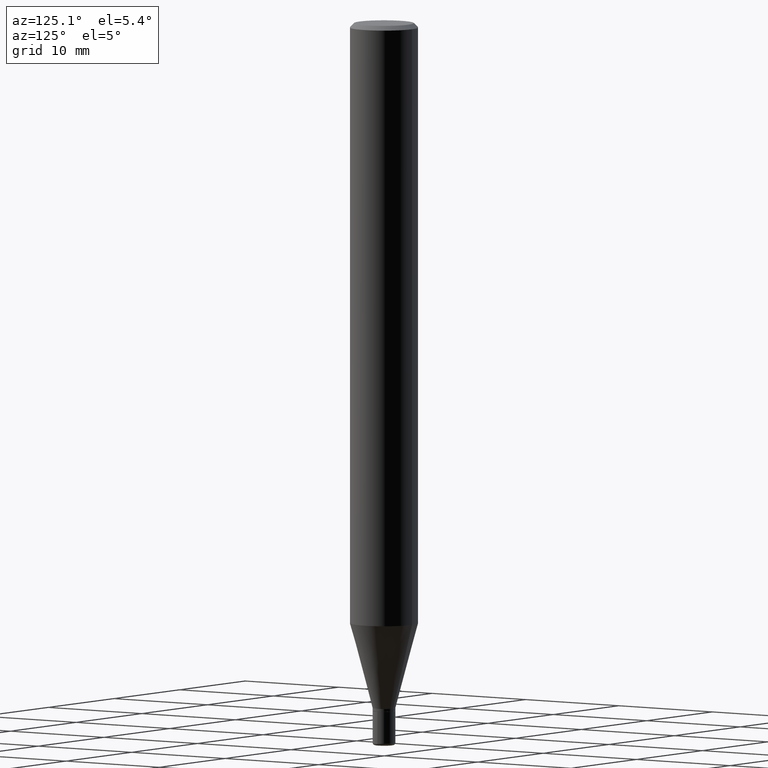
[diagram: clean part render]
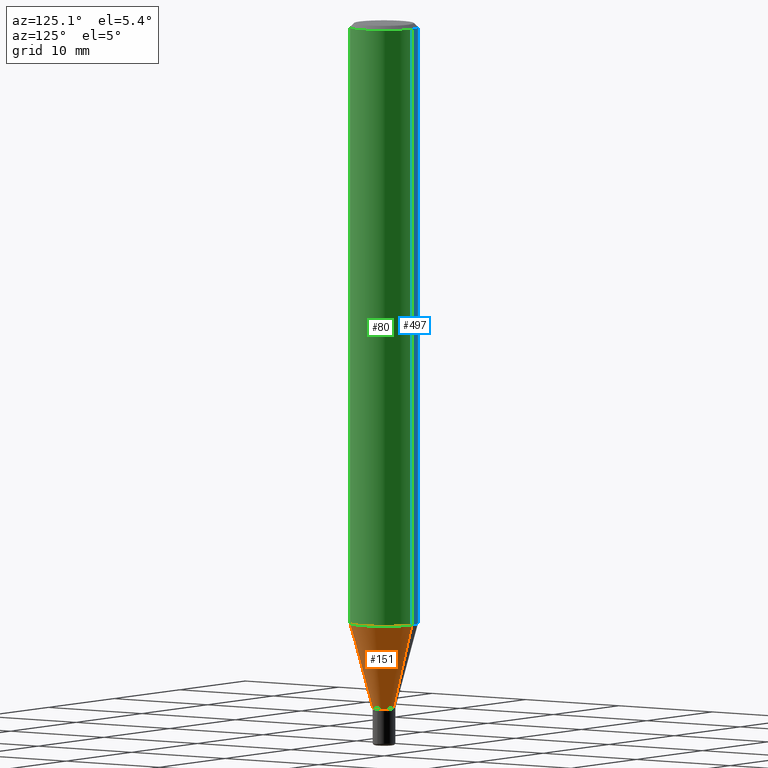
[diagram: same view with three faces highlighted in distinct colors, each labeled with its STEP entity id]
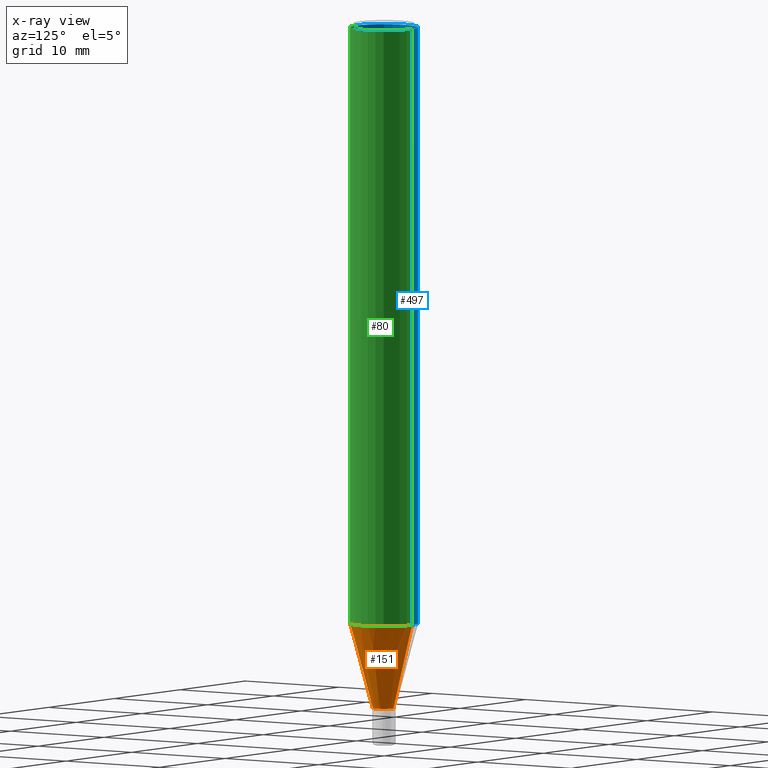
[diagram: x-ray of the same camera — body ghosted, the three highlighted faces saturated]
A machine part, auxiliary view with three faces highlighted in distinct colors.
The next image is the same camera in x-ray (body ghosted, the three faces saturated) — at least one of them is partly hidden behind the body in this view.
Their STEP definitions:

[orange] entity #151 — the highlighted conical surface has half-angle 15 deg.
#2 = LINE ( 'NONE', #292, #290 ) ;
#11 = DIRECTION ( 'NONE',  ( -2.445160199248264608E-29, 3.491923281541562351E-15, 1.000000000000000000 ) ) ;
#15 = VERTEX_POINT ( 'NONE', #66 ) ;
#21 = VECTOR ( 'NONE', #356, 39.37007874015748854 ) ;
#27 = ORIENTED_EDGE ( 'NONE', *, *, #166, .F. ) ;
#41 = CARTESIAN_POINT ( 'NONE',  ( 2.795985665216578697E-16, 0.03934999999999178738, -2.371900000000000563 ) ) ;
#48 = VERTEX_POINT ( 'NONE', #262 ) ;
#53 = ORIENTED_EDGE ( 'NONE', *, *, #252, .T. ) ;
#66 = CARTESIAN_POINT ( 'NONE',  ( 8.391509709327291772E-16, 0.1180999999999927802, -2.078000998903951846 ) ) ;
#83 = LINE ( 'NONE', #41, #21 ) ;
#90 = EDGE_CURVE ( 'NONE', #48, #15, #83, .T. ) ;
#103 = CIRCLE ( 'NONE', #504, 0.03935000000000007242 ) ;
#106 = CARTESIAN_POINT ( 'NONE',  ( 5.799675476596958470E-29, -8.282492831488431921E-15, -2.371900000000000119 ) ) ;
#141 = DIRECTION ( 'NONE',  ( -2.445160199248264608E-29, 3.491923281541562351E-15, 1.000000000000000000 ) ) ;
#151 = ADVANCED_FACE ( 'NONE', ( #386 ), #291, .T. ) ;
#166 = EDGE_CURVE ( 'NONE', #191, #15, #437, .T. ) ;
#178 = DIRECTION ( 'NONE',  ( -6.982962677686264344E-15, -1.000000000000000000, 6.942434545525433679E-15 ) ) ;
#191 = VERTEX_POINT ( 'NONE', #295 ) ;
#208 = VERTEX_POINT ( 'NONE', #218 ) ;
#218 = CARTESIAN_POINT ( 'NONE',  ( -2.747795813668970342E-16, -0.03935000000000835052, -2.371900000000000119 ) ) ;
#252 = EDGE_CURVE ( 'NONE', #208, #48, #103, .T. ) ;
#255 = DIRECTION ( 'NONE',  ( -1.807323732225324617E-15, -0.2588190451025174088, 0.9659258262890690894 ) ) ;
#262 = CARTESIAN_POINT ( 'NONE',  ( 5.593747687271934248E-16, 0.03934999999999178738, -2.371900000000000563 ) ) ;
#290 = VECTOR ( 'NONE', #255, 39.37007874015748854 ) ;
#291 = CONICAL_SURFACE ( 'NONE', #358, 0.03935000000000007242, 0.2617993877991495189 ) ;
#292 = CARTESIAN_POINT ( 'NONE',  ( -2.747795813668970342E-16, -0.03935000000000835052, -2.371900000000000119 ) ) ;
#295 = CARTESIAN_POINT ( 'NONE',  ( -8.246878922346967894E-16, -0.1181000000000071992, -2.078000998903951402 ) ) ;
#299 = DIRECTION ( 'NONE',  ( -2.445160199248264608E-29, 3.491923281541562351E-15, 1.000000000000000000 ) ) ;
#352 = ORIENTED_EDGE ( 'NONE', *, *, #90, .T. ) ;
#356 = DIRECTION ( 'NONE',  ( 1.839019923739594793E-15, 0.2588190451025241812, 0.9659258262890673130 ) ) ;
#357 = DIRECTION ( 'NONE',  ( -6.982962677686264344E-15, -1.000000000000000000, 6.942434545525433679E-15 ) ) ;
#358 = AXIS2_PLACEMENT_3D ( 'NONE', #106, #141, #357 ) ;
#383 = AXIS2_PLACEMENT_3D ( 'NONE', #468, #299, #439 ) ;
#386 = FACE_OUTER_BOUND ( 'NONE', #495, .T. ) ;
#414 = CARTESIAN_POINT ( 'NONE',  ( 5.799675476596958470E-29, -8.282492831488431921E-15, -2.371900000000000119 ) ) ;
#437 = CIRCLE ( 'NONE', #383, 0.1180999999999999966 ) ;
#439 = DIRECTION ( 'NONE',  ( -6.982962677686265922E-15, -1.000000000000000000, 4.626330217890369336E-15 ) ) ;
#468 = CARTESIAN_POINT ( 'NONE',  ( 5.081045336518078348E-29, -7.256220067139329431E-15, -2.078000998903951402 ) ) ;
#475 = ORIENTED_EDGE ( 'NONE', *, *, #517, .F. ) ;
#495 = EDGE_LOOP ( 'NONE', ( #53, #352, #27, #475 ) ) ;
#504 = AXIS2_PLACEMENT_3D ( 'NONE', #414, #11, #178 ) ;
#517 = EDGE_CURVE ( 'NONE', #208, #191, #2, .T. ) ;

[blue] entity #497 — the highlighted cylindrical surface (edge-blend (fillet) strip) has radius 2.9997 mm, axis along (-0, 0, 1).
#12 = EDGE_CURVE ( 'NONE', #239, #297, #373, .T. ) ;
#15 = VERTEX_POINT ( 'NONE', #66 ) ;
#31 = AXIS2_PLACEMENT_3D ( 'NONE', #350, #509, #157 ) ;
#46 = AXIS2_PLACEMENT_3D ( 'NONE', #502, #413, #58 ) ;
#58 = DIRECTION ( 'NONE',  ( -6.982962677686265922E-15, -1.000000000000000000, 3.487819265831411744E-15 ) ) ;
#66 = CARTESIAN_POINT ( 'NONE',  ( 8.391509709327291772E-16, 0.1180999999999927802, -2.078000998903951846 ) ) ;
#99 = EDGE_CURVE ( 'NONE', #191, #297, #278, .T. ) ;
#101 = DIRECTION ( 'NONE',  ( -2.445160199248264608E-29, 3.491923281541562351E-15, 1.000000000000000000 ) ) ;
#147 = LINE ( 'NONE', #254, #152 ) ;
#152 = VECTOR ( 'NONE', #422, 39.37007874015748143 ) ;
#157 = DIRECTION ( 'NONE',  ( -6.982962677686265922E-15, -1.000000000000000000, 3.491923281541562746E-15 ) ) ;
#187 = AXIS2_PLACEMENT_3D ( 'NONE', #345, #101, #335 ) ;
#191 = VERTEX_POINT ( 'NONE', #295 ) ;
#192 = EDGE_CURVE ( 'NONE', #15, #191, #308, .T. ) ;
#239 = VERTEX_POINT ( 'NONE', #459 ) ;
#254 = CARTESIAN_POINT ( 'NONE',  ( 8.391509709326781971E-16, 0.1180999999999999966, -4.123961395500585500E-16 ) ) ;
#263 = CARTESIAN_POINT ( 'NONE',  ( -8.246878922347475723E-16, -0.1181000000000000522, -0.01499999999999954495 ) ) ;
#267 = EDGE_CURVE ( 'NONE', #15, #239, #147, .T. ) ;
#274 = CYLINDRICAL_SURFACE ( 'NONE', #31, 0.1180999999999999966 ) ;
#278 = LINE ( 'NONE', #433, #398 ) ;
#295 = CARTESIAN_POINT ( 'NONE',  ( -8.246878922346967894E-16, -0.1181000000000071992, -2.078000998903951402 ) ) ;
#297 = VERTEX_POINT ( 'NONE', #263 ) ;
#308 = CIRCLE ( 'NONE', #187, 0.1180999999999999966 ) ;
#310 = ORIENTED_EDGE ( 'NONE', *, *, #267, .F. ) ;
#332 = ORIENTED_EDGE ( 'NONE', *, *, #192, .T. ) ;
#335 = DIRECTION ( 'NONE',  ( -6.982962677686265922E-15, -1.000000000000000000, 4.626330217890369336E-15 ) ) ;
#344 = ORIENTED_EDGE ( 'NONE', *, *, #99, .T. ) ;
#345 = CARTESIAN_POINT ( 'NONE',  ( 5.081045336518078348E-29, -7.256220067139329431E-15, -2.078000998903951402 ) ) ;
#350 = CARTESIAN_POINT ( 'NONE',  ( 0.000000000000000000, 0.000000000000000000, 0.000000000000000000 ) ) ;
#373 = CIRCLE ( 'NONE', #46, 0.1180999999999999966 ) ;
#388 = FACE_OUTER_BOUND ( 'NONE', #488, .T. ) ;
#392 = DIRECTION ( 'NONE',  ( -2.445160199248264608E-29, 3.491923281541562351E-15, 1.000000000000000000 ) ) ;
#396 = ORIENTED_EDGE ( 'NONE', *, *, #12, .F. ) ;
#398 = VECTOR ( 'NONE', #392, 39.37007874015748143 ) ;
#413 = DIRECTION ( 'NONE',  ( -2.445160199248264608E-29, 3.491923281541562351E-15, 1.000000000000000000 ) ) ;
#422 = DIRECTION ( 'NONE',  ( -2.445160199248264608E-29, 3.491923281541562351E-15, 1.000000000000000000 ) ) ;
#433 = CARTESIAN_POINT ( 'NONE',  ( -8.246878922347479668E-16, -0.1180999999999999966, 4.123961395500585500E-16 ) ) ;
#459 = CARTESIAN_POINT ( 'NONE',  ( 8.391509709327292758E-16, 0.1180999999999999273, -0.01500000000000036894 ) ) ;
#488 = EDGE_LOOP ( 'NONE', ( #310, #332, #344, #396 ) ) ;
#497 = ADVANCED_FACE ( 'NONE', ( #388 ), #274, .T. ) ;
#502 = CARTESIAN_POINT ( 'NONE',  ( 3.667740298872386437E-31, -5.237884922312328859E-17, -0.01499999999999995781 ) ) ;
#509 = DIRECTION ( 'NONE',  ( -2.445160199248264608E-29, 3.491923281541562351E-15, 1.000000000000000000 ) ) ;

[green] entity #80 — the highlighted cylindrical surface (edge-blend (fillet) strip) has radius 2.9997 mm, axis along (-0, 0, 1).
#3 = EDGE_LOOP ( 'NONE', ( #465, #212, #249, #289 ) ) ;
#15 = VERTEX_POINT ( 'NONE', #66 ) ;
#20 = FACE_OUTER_BOUND ( 'NONE', #3, .T. ) ;
#55 = AXIS2_PLACEMENT_3D ( 'NONE', #175, #477, #436 ) ;
#66 = CARTESIAN_POINT ( 'NONE',  ( 8.391509709327291772E-16, 0.1180999999999927802, -2.078000998903951846 ) ) ;
#80 = ADVANCED_FACE ( 'NONE', ( #20 ), #188, .T. ) ;
#99 = EDGE_CURVE ( 'NONE', #191, #297, #278, .T. ) ;
#147 = LINE ( 'NONE', #254, #152 ) ;
#150 = CARTESIAN_POINT ( 'NONE',  ( 3.667740298872386437E-31, -5.237884922312328859E-17, -0.01499999999999995781 ) ) ;
#152 = VECTOR ( 'NONE', #422, 39.37007874015748143 ) ;
#166 = EDGE_CURVE ( 'NONE', #191, #15, #437, .T. ) ;
#175 = CARTESIAN_POINT ( 'NONE',  ( 0.000000000000000000, 0.000000000000000000, 0.000000000000000000 ) ) ;
#182 = EDGE_CURVE ( 'NONE', #297, #239, #217, .T. ) ;
#188 = CYLINDRICAL_SURFACE ( 'NONE', #55, 0.1180999999999999966 ) ;
#191 = VERTEX_POINT ( 'NONE', #295 ) ;
#202 = AXIS2_PLACEMENT_3D ( 'NONE', #150, #375, #494 ) ;
#212 = ORIENTED_EDGE ( 'NONE', *, *, #267, .T. ) ;
#217 = CIRCLE ( 'NONE', #202, 0.1180999999999999966 ) ;
#239 = VERTEX_POINT ( 'NONE', #459 ) ;
#249 = ORIENTED_EDGE ( 'NONE', *, *, #182, .F. ) ;
#254 = CARTESIAN_POINT ( 'NONE',  ( 8.391509709326781971E-16, 0.1180999999999999966, -4.123961395500585500E-16 ) ) ;
#263 = CARTESIAN_POINT ( 'NONE',  ( -8.246878922347475723E-16, -0.1181000000000000522, -0.01499999999999954495 ) ) ;
#267 = EDGE_CURVE ( 'NONE', #15, #239, #147, .T. ) ;
#278 = LINE ( 'NONE', #433, #398 ) ;
#289 = ORIENTED_EDGE ( 'NONE', *, *, #99, .F. ) ;
#295 = CARTESIAN_POINT ( 'NONE',  ( -8.246878922346967894E-16, -0.1181000000000071992, -2.078000998903951402 ) ) ;
#297 = VERTEX_POINT ( 'NONE', #263 ) ;
#299 = DIRECTION ( 'NONE',  ( -2.445160199248264608E-29, 3.491923281541562351E-15, 1.000000000000000000 ) ) ;
#375 = DIRECTION ( 'NONE',  ( -2.445160199248264608E-29, 3.491923281541562351E-15, 1.000000000000000000 ) ) ;
#383 = AXIS2_PLACEMENT_3D ( 'NONE', #468, #299, #439 ) ;
#392 = DIRECTION ( 'NONE',  ( -2.445160199248264608E-29, 3.491923281541562351E-15, 1.000000000000000000 ) ) ;
#398 = VECTOR ( 'NONE', #392, 39.37007874015748143 ) ;
#422 = DIRECTION ( 'NONE',  ( -2.445160199248264608E-29, 3.491923281541562351E-15, 1.000000000000000000 ) ) ;
#433 = CARTESIAN_POINT ( 'NONE',  ( -8.246878922347479668E-16, -0.1180999999999999966, 4.123961395500585500E-16 ) ) ;
#436 = DIRECTION ( 'NONE',  ( -6.982962677686265922E-15, -1.000000000000000000, 3.491923281541562746E-15 ) ) ;
#437 = CIRCLE ( 'NONE', #383, 0.1180999999999999966 ) ;
#439 = DIRECTION ( 'NONE',  ( -6.982962677686265922E-15, -1.000000000000000000, 4.626330217890369336E-15 ) ) ;
#459 = CARTESIAN_POINT ( 'NONE',  ( 8.391509709327292758E-16, 0.1180999999999999273, -0.01500000000000036894 ) ) ;
#465 = ORIENTED_EDGE ( 'NONE', *, *, #166, .T. ) ;
#468 = CARTESIAN_POINT ( 'NONE',  ( 5.081045336518078348E-29, -7.256220067139329431E-15, -2.078000998903951402 ) ) ;
#477 = DIRECTION ( 'NONE',  ( -2.445160199248264608E-29, 3.491923281541562351E-15, 1.000000000000000000 ) ) ;
#494 = DIRECTION ( 'NONE',  ( -6.982962677686265922E-15, -1.000000000000000000, 3.487819265831411744E-15 ) ) ;